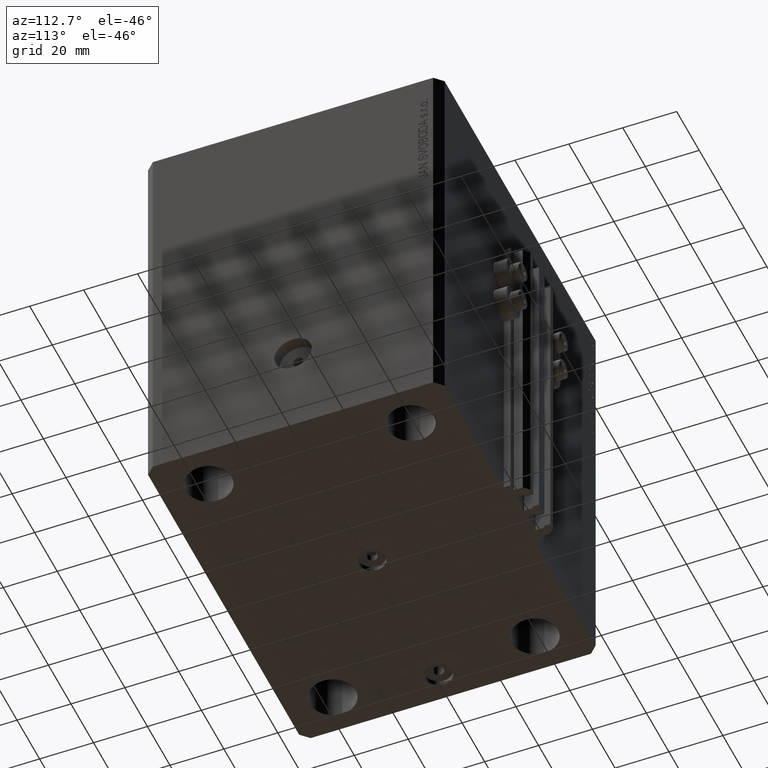
[diagram: clean part render]
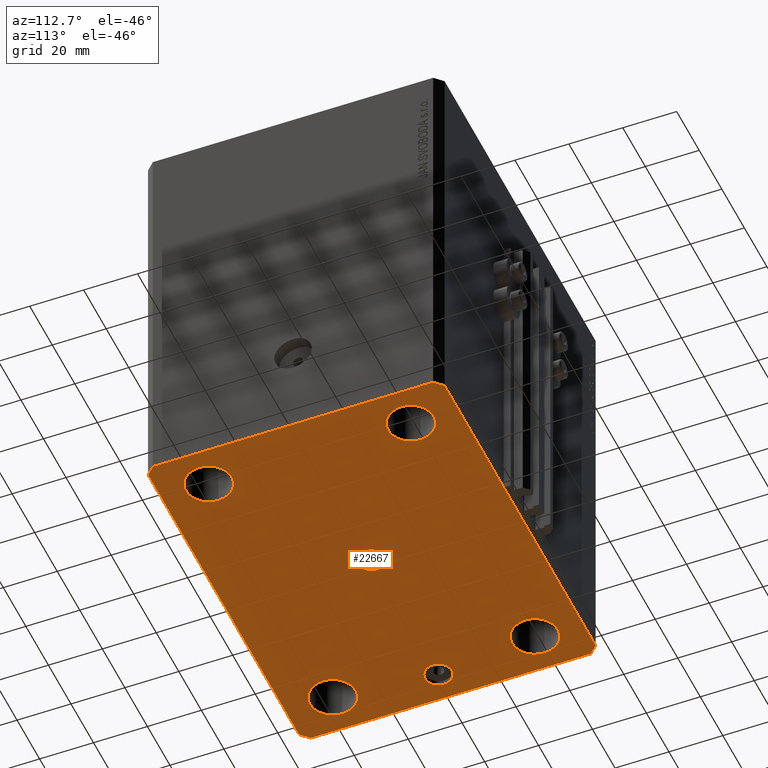
[diagram: same view with one face highlighted and labeled with its STEP entity id]
A machine part, auxiliary view. The second image highlights one B-rep face of the part: STEP entity #22667.
In plain terms, the highlighted planar face has unit normal (0, 0, 1).
Its self-contained STEP definition (entity closure, byte-faithful):
#127 = AXIS2_PLACEMENT_3D ( 'NONE', #18627, #26053, #7853 ) ;
#305 = CARTESIAN_POINT ( 'NONE',  ( -53.99999999999999289, 6.123233995736770227E-16, -150.0000000000000000 ) ) ;
#652 = CARTESIAN_POINT ( 'NONE',  ( 46.49999999999998579, -37.50000000000000711, -150.0000000000000000 ) ) ;
#937 = AXIS2_PLACEMENT_3D ( 'NONE', #3836, #18433, #39736 ) ;
#1021 = EDGE_CURVE ( 'NONE', #35466, #8320, #34172, .T. ) ;
#1191 = EDGE_CURVE ( 'NONE', #26977, #42983, #46444, .T. ) ;
#1314 = DIRECTION ( 'NONE',  ( -0.000000000000000000, -0.000000000000000000, -1.000000000000000000 ) ) ;
#1331 = CIRCLE ( 'NONE', #18903, 8.499999999999992895 ) ;
#1920 = CARTESIAN_POINT ( 'NONE',  ( 0.000000000000000000, 0.000000000000000000, -150.0000000000000000 ) ) ;
#2091 = EDGE_CURVE ( 'NONE', #23521, #5578, #42512, .T. ) ;
#2126 = VECTOR ( 'NONE', #16199, 1000.000000000000000 ) ;
#2131 = CARTESIAN_POINT ( 'NONE',  ( -63.49999999999998579, -37.50000000000000711, -150.0000000000000000 ) ) ;
#2257 = ORIENTED_EDGE ( 'NONE', *, *, #16299, .F. ) ;
#2382 = DIRECTION ( 'NONE',  ( -0.7071067811865483499, -0.7071067811865466846, 0.000000000000000000 ) ) ;
#2736 = VECTOR ( 'NONE', #33920, 1000.000000000000000 ) ;
#2987 = DIRECTION ( 'NONE',  ( -0.000000000000000000, -0.000000000000000000, -1.000000000000000000 ) ) ;
#3018 = CARTESIAN_POINT ( 'NONE',  ( 46.50000000000001421, 37.49999999999998579, -150.0000000000000000 ) ) ;
#3210 = EDGE_CURVE ( 'NONE', #13080, #29274, #38683, .T. ) ;
#3519 = CARTESIAN_POINT ( 'NONE',  ( -70.00000000000000000, -52.00000000000000711, -150.0000000000000000 ) ) ;
#3836 = CARTESIAN_POINT ( 'NONE',  ( 0.000000000000000000, 0.000000000000000000, -150.0000000000000000 ) ) ;
#4373 = VERTEX_POINT ( 'NONE', #19976 ) ;
#4975 = ORIENTED_EDGE ( 'NONE', *, *, #1191, .F. ) ;
#4993 = EDGE_LOOP ( 'NONE', ( #4975, #24614 ) ) ;
#5195 = LINE ( 'NONE', #34391, #2736 ) ;
#5284 = DIRECTION ( 'NONE',  ( -0.000000000000000000, -0.000000000000000000, -1.000000000000000000 ) ) ;
#5578 = VERTEX_POINT ( 'NONE', #14669 ) ;
#5998 = VECTOR ( 'NONE', #24286, 1000.000000000000000 ) ;
#6588 = DIRECTION ( 'NONE',  ( 1.000000000000000000, 0.000000000000000000, 0.000000000000000000 ) ) ;
#6816 = CARTESIAN_POINT ( 'NONE',  ( 70.00000000000054001, 51.99999999999995026, -150.0000000000000000 ) ) ;
#6853 = VERTEX_POINT ( 'NONE', #43302 ) ;
#6899 = ORIENTED_EDGE ( 'NONE', *, *, #41856, .F. ) ;
#7496 = DIRECTION ( 'NONE',  ( -0.000000000000000000, -0.000000000000000000, -1.000000000000000000 ) ) ;
#7517 = DIRECTION ( 'NONE',  ( 1.000000000000000000, 0.000000000000000000, 0.000000000000000000 ) ) ;
#7726 = FACE_BOUND ( 'NONE', #14811, .T. ) ;
#7853 = DIRECTION ( 'NONE',  ( -1.000000000000000000, 0.000000000000000000, 0.000000000000000000 ) ) ;
#7955 = CARTESIAN_POINT ( 'NONE',  ( -67.00000000000000000, -55.00000000000000000, -150.0000000000000000 ) ) ;
#7963 = FACE_OUTER_BOUND ( 'NONE', #14334, .T. ) ;
#8239 = VECTOR ( 'NONE', #36555, 1000.000000000000114 ) ;
#8320 = VERTEX_POINT ( 'NONE', #3018 ) ;
#8592 = ORIENTED_EDGE ( 'NONE', *, *, #17261, .F. ) ;
#9667 = FACE_BOUND ( 'NONE', #42115, .T. ) ;
#9673 = LINE ( 'NONE', #31695, #5998 ) ;
#10028 = DIRECTION ( 'NONE',  ( -0.000000000000000000, -0.000000000000000000, -1.000000000000000000 ) ) ;
#10236 = DIRECTION ( 'NONE',  ( 0.7071067811865483499, -0.7071067811865466846, 0.000000000000000000 ) ) ;
#10952 = LINE ( 'NONE', #14550, #8239 ) ;
#11978 = CARTESIAN_POINT ( 'NONE',  ( 55.00000000000000711, 37.49999999999998579, -150.0000000000000000 ) ) ;
#12425 = ORIENTED_EDGE ( 'NONE', *, *, #12662, .F. ) ;
#12490 = CARTESIAN_POINT ( 'NONE',  ( -46.50000000000000000, 37.50000000000000000, -150.0000000000000000 ) ) ;
#12523 = ORIENTED_EDGE ( 'NONE', *, *, #30183, .F. ) ;
#12525 = DIRECTION ( 'NONE',  ( 1.000000000000000000, 0.000000000000000000, 0.000000000000000000 ) ) ;
#12662 = EDGE_CURVE ( 'NONE', #38945, #33698, #30616, .T. ) ;
#12866 = DIRECTION ( 'NONE',  ( 0.7071067811865483499, 0.7071067811865466846, 0.000000000000000000 ) ) ;
#13080 = VERTEX_POINT ( 'NONE', #38373 ) ;
#13641 = CIRCLE ( 'NONE', #36545, 8.500000000000000000 ) ;
#14334 = EDGE_LOOP ( 'NONE', ( #15631, #46544, #18022, #42074, #12523, #34101, #42702, #37475 ) ) ;
#14550 = CARTESIAN_POINT ( 'NONE',  ( 70.00000000000054001, 51.99999999999995026, -150.0000000000000000 ) ) ;
#14669 = CARTESIAN_POINT ( 'NONE',  ( -67.00000000000000000, 55.00000000000000000, -150.0000000000000000 ) ) ;
#14811 = EDGE_LOOP ( 'NONE', ( #44689, #2257 ) ) ;
#14900 = VECTOR ( 'NONE', #10236, 1000.000000000000000 ) ;
#15612 = AXIS2_PLACEMENT_3D ( 'NONE', #25437, #25920, #29988 ) ;
#15631 = ORIENTED_EDGE ( 'NONE', *, *, #2091, .F. ) ;
#16199 = DIRECTION ( 'NONE',  ( 0.000000000000000000, -1.000000000000000000, 0.000000000000000000 ) ) ;
#16283 = DIRECTION ( 'NONE',  ( 1.000000000000000000, 0.000000000000000000, 0.000000000000000000 ) ) ;
#16299 = EDGE_CURVE ( 'NONE', #44303, #39399, #45996, .T. ) ;
#16504 = DIRECTION ( 'NONE',  ( 0.000000000000000000, 0.000000000000000000, -1.000000000000000000 ) ) ;
#16587 = VECTOR ( 'NONE', #12866, 1000.000000000000000 ) ;
#16627 = VERTEX_POINT ( 'NONE', #36079 ) ;
#16952 = ORIENTED_EDGE ( 'NONE', *, *, #45385, .F. ) ;
#17135 = CARTESIAN_POINT ( 'NONE',  ( -70.00000000000000000, 52.00000000000000711, -150.0000000000000000 ) ) ;
#17211 = CARTESIAN_POINT ( 'NONE',  ( -54.99999999999998579, -37.50000000000000711, -150.0000000000000000 ) ) ;
#17261 = EDGE_CURVE ( 'NONE', #39194, #6853, #23096, .T. ) ;
#17445 = LINE ( 'NONE', #20326, #31213 ) ;
#18022 = ORIENTED_EDGE ( 'NONE', *, *, #46237, .F. ) ;
#18151 = DIRECTION ( 'NONE',  ( 1.000000000000000000, 0.000000000000000000, 0.000000000000000000 ) ) ;
#18199 = EDGE_CURVE ( 'NONE', #42983, #26977, #23132, .T. ) ;
#18433 = DIRECTION ( 'NONE',  ( 0.000000000000000000, 0.000000000000000000, -1.000000000000000000 ) ) ;
#18627 = CARTESIAN_POINT ( 'NONE',  ( -59.00000000000000000, 0.000000000000000000, -150.0000000000000000 ) ) ;
#18903 = AXIS2_PLACEMENT_3D ( 'NONE', #11978, #5284, #16283 ) ;
#19157 = VERTEX_POINT ( 'NONE', #6816 ) ;
#19307 = AXIS2_PLACEMENT_3D ( 'NONE', #22093, #7496, #36926 ) ;
#19584 = CARTESIAN_POINT ( 'NONE',  ( 67.00000000000000000, -55.00000000000000000, -150.0000000000000000 ) ) ;
#19976 = CARTESIAN_POINT ( 'NONE',  ( -46.49999999999998579, -37.50000000000000711, -150.0000000000000000 ) ) ;
#20321 = ORIENTED_EDGE ( 'NONE', *, *, #28199, .F. ) ;
#20326 = CARTESIAN_POINT ( 'NONE',  ( -67.00000000000000000, 55.00000000000000000, -150.0000000000000000 ) ) ;
#20949 = CARTESIAN_POINT ( 'NONE',  ( 67.00000000000058265, 54.99999999999999289, -150.0000000000000000 ) ) ;
#21230 = AXIS2_PLACEMENT_3D ( 'NONE', #1920, #16504, #44776 ) ;
#21848 = VERTEX_POINT ( 'NONE', #2131 ) ;
#21870 = DIRECTION ( 'NONE',  ( -0.000000000000000000, -0.000000000000000000, -1.000000000000000000 ) ) ;
#21950 = LINE ( 'NONE', #3519, #14900 ) ;
#22093 = CARTESIAN_POINT ( 'NONE',  ( 54.99999999999998579, -37.50000000000000711, -150.0000000000000000 ) ) ;
#22117 = VERTEX_POINT ( 'NONE', #27820 ) ;
#22332 = PLANE ( 'NONE',  #15612 ) ;
#22667 = ADVANCED_FACE ( 'NONE', ( #9667, #7726, #40760, #26167, #40271, #47231, #7963 ), #22332, .F. ) ;
#22691 = AXIS2_PLACEMENT_3D ( 'NONE', #44976, #37313, #22955 ) ;
#22708 = LINE ( 'NONE', #19584, #16587 ) ;
#22955 = DIRECTION ( 'NONE',  ( 1.000000000000000000, 0.000000000000000000, 0.000000000000000000 ) ) ;
#23096 = CIRCLE ( 'NONE', #937, 5.000000000000000000 ) ;
#23132 = CIRCLE ( 'NONE', #19307, 8.500000000000000000 ) ;
#23521 = VERTEX_POINT ( 'NONE', #24522 ) ;
#24286 = DIRECTION ( 'NONE',  ( 5.070730160547592760E-15, 1.000000000000000000, 0.000000000000000000 ) ) ;
#24522 = CARTESIAN_POINT ( 'NONE',  ( 67.00000000000058265, 54.99999999999999289, -150.0000000000000000 ) ) ;
#24614 = ORIENTED_EDGE ( 'NONE', *, *, #18199, .F. ) ;
#24788 = EDGE_LOOP ( 'NONE', ( #31226, #6899 ) ) ;
#25437 = CARTESIAN_POINT ( 'NONE',  ( 0.000000000000000000, 0.000000000000000000, -150.0000000000000000 ) ) ;
#25566 = DIRECTION ( 'NONE',  ( -0.000000000000000000, -0.000000000000000000, -1.000000000000000000 ) ) ;
#25920 = DIRECTION ( 'NONE',  ( 0.000000000000000000, 0.000000000000000000, 1.000000000000000000 ) ) ;
#26053 = DIRECTION ( 'NONE',  ( 0.000000000000000000, 0.000000000000000000, -1.000000000000000000 ) ) ;
#26167 = FACE_BOUND ( 'NONE', #4993, .T. ) ;
#26290 = EDGE_CURVE ( 'NONE', #29274, #35252, #21950, .T. ) ;
#26977 = VERTEX_POINT ( 'NONE', #27282 ) ;
#27282 = CARTESIAN_POINT ( 'NONE',  ( 63.49999999999998579, -37.50000000000000711, -150.0000000000000000 ) ) ;
#27820 = CARTESIAN_POINT ( 'NONE',  ( 70.00000000000000000, -52.00000000000000711, -150.0000000000000000 ) ) ;
#28199 = EDGE_CURVE ( 'NONE', #33698, #38945, #43168, .T. ) ;
#28459 = DIRECTION ( 'NONE',  ( 1.000000000000000000, 0.000000000000000000, 0.000000000000000000 ) ) ;
#29274 = VERTEX_POINT ( 'NONE', #43152 ) ;
#29633 = CARTESIAN_POINT ( 'NONE',  ( -55.00000000000000000, 37.50000000000000000, -150.0000000000000000 ) ) ;
#29682 = CARTESIAN_POINT ( 'NONE',  ( -5.000000000000000000, 0.000000000000000000, -150.0000000000000000 ) ) ;
#29988 = DIRECTION ( 'NONE',  ( 1.000000000000000000, 0.000000000000000000, -0.000000000000000000 ) ) ;
#30151 = AXIS2_PLACEMENT_3D ( 'NONE', #32412, #2987, #6588 ) ;
#30183 = EDGE_CURVE ( 'NONE', #35252, #16627, #5195, .T. ) ;
#30616 = CIRCLE ( 'NONE', #44346, 8.500000000000000000 ) ;
#31213 = VECTOR ( 'NONE', #2382, 1000.000000000000000 ) ;
#31226 = ORIENTED_EDGE ( 'NONE', *, *, #1021, .F. ) ;
#31695 = CARTESIAN_POINT ( 'NONE',  ( 70.00000000000000000, -52.00000000000000711, -150.0000000000000000 ) ) ;
#31805 = CARTESIAN_POINT ( 'NONE',  ( -64.00000000000000000, 0.000000000000000000, -150.0000000000000000 ) ) ;
#31974 = CIRCLE ( 'NONE', #47280, 8.500000000000000000 ) ;
#32412 = CARTESIAN_POINT ( 'NONE',  ( -55.00000000000000000, 37.50000000000000000, -150.0000000000000000 ) ) ;
#32582 = DIRECTION ( 'NONE',  ( -1.000000000000000000, 0.000000000000000000, 0.000000000000000000 ) ) ;
#32883 = EDGE_CURVE ( 'NONE', #39399, #44303, #44148, .T. ) ;
#32925 = EDGE_LOOP ( 'NONE', ( #12425, #20321 ) ) ;
#33698 = VERTEX_POINT ( 'NONE', #40917 ) ;
#33920 = DIRECTION ( 'NONE',  ( 1.000000000000000000, 0.000000000000000000, 0.000000000000000000 ) ) ;
#34101 = ORIENTED_EDGE ( 'NONE', *, *, #26290, .F. ) ;
#34172 = CIRCLE ( 'NONE', #22691, 8.499999999999992895 ) ;
#34391 = CARTESIAN_POINT ( 'NONE',  ( -67.00000000000000000, -55.00000000000000000, -150.0000000000000000 ) ) ;
#34614 = DIRECTION ( 'NONE',  ( -1.000000000000000000, 5.178279032766565695E-17, 0.000000000000000000 ) ) ;
#34958 = VECTOR ( 'NONE', #34614, 1000.000000000000000 ) ;
#35252 = VERTEX_POINT ( 'NONE', #7955 ) ;
#35466 = VERTEX_POINT ( 'NONE', #46475 ) ;
#35537 = ORIENTED_EDGE ( 'NONE', *, *, #40219, .F. ) ;
#36079 = CARTESIAN_POINT ( 'NONE',  ( 67.00000000000000000, -55.00000000000000000, -150.0000000000000000 ) ) ;
#36166 = DIRECTION ( 'NONE',  ( 0.000000000000000000, 0.000000000000000000, -1.000000000000000000 ) ) ;
#36545 = AXIS2_PLACEMENT_3D ( 'NONE', #17211, #10028, #28459 ) ;
#36555 = DIRECTION ( 'NONE',  ( -0.7071067811865361374, 0.7071067811865588970, 0.000000000000000000 ) ) ;
#36746 = EDGE_LOOP ( 'NONE', ( #40325, #16952 ) ) ;
#36926 = DIRECTION ( 'NONE',  ( 1.000000000000000000, 0.000000000000000000, 0.000000000000000000 ) ) ;
#37086 = EDGE_CURVE ( 'NONE', #4373, #21848, #31974, .T. ) ;
#37313 = DIRECTION ( 'NONE',  ( -0.000000000000000000, -0.000000000000000000, -1.000000000000000000 ) ) ;
#37475 = ORIENTED_EDGE ( 'NONE', *, *, #44634, .F. ) ;
#38373 = CARTESIAN_POINT ( 'NONE',  ( -70.00000000000000000, 52.00000000000000711, -150.0000000000000000 ) ) ;
#38683 = LINE ( 'NONE', #17135, #2126 ) ;
#38945 = VERTEX_POINT ( 'NONE', #12490 ) ;
#39194 = VERTEX_POINT ( 'NONE', #29682 ) ;
#39399 = VERTEX_POINT ( 'NONE', #31805 ) ;
#39509 = EDGE_CURVE ( 'NONE', #19157, #23521, #10952, .T. ) ;
#39736 = DIRECTION ( 'NONE',  ( -1.000000000000000000, 0.000000000000000000, 0.000000000000000000 ) ) ;
#39766 = CARTESIAN_POINT ( 'NONE',  ( -59.00000000000000000, 0.000000000000000000, -150.0000000000000000 ) ) ;
#40219 = EDGE_CURVE ( 'NONE', #6853, #39194, #40313, .T. ) ;
#40271 = FACE_BOUND ( 'NONE', #24788, .T. ) ;
#40313 = CIRCLE ( 'NONE', #21230, 5.000000000000000000 ) ;
#40325 = ORIENTED_EDGE ( 'NONE', *, *, #37086, .F. ) ;
#40760 = FACE_BOUND ( 'NONE', #36746, .T. ) ;
#40917 = CARTESIAN_POINT ( 'NONE',  ( -63.50000000000000000, 37.50000000000000000, -150.0000000000000000 ) ) ;
#41856 = EDGE_CURVE ( 'NONE', #8320, #35466, #1331, .T. ) ;
#42074 = ORIENTED_EDGE ( 'NONE', *, *, #42084, .F. ) ;
#42084 = EDGE_CURVE ( 'NONE', #16627, #22117, #22708, .T. ) ;
#42115 = EDGE_LOOP ( 'NONE', ( #8592, #35537 ) ) ;
#42512 = LINE ( 'NONE', #20949, #34958 ) ;
#42702 = ORIENTED_EDGE ( 'NONE', *, *, #3210, .F. ) ;
#42983 = VERTEX_POINT ( 'NONE', #652 ) ;
#43152 = CARTESIAN_POINT ( 'NONE',  ( -70.00000000000000000, -52.00000000000000711, -150.0000000000000000 ) ) ;
#43168 = CIRCLE ( 'NONE', #30151, 8.500000000000000000 ) ;
#43302 = CARTESIAN_POINT ( 'NONE',  ( 5.000000000000000000, 6.123233995736765296E-16, -150.0000000000000000 ) ) ;
#43357 = AXIS2_PLACEMENT_3D ( 'NONE', #39766, #36166, #32582 ) ;
#44102 = AXIS2_PLACEMENT_3D ( 'NONE', #44136, #21870, #7517 ) ;
#44136 = CARTESIAN_POINT ( 'NONE',  ( 54.99999999999998579, -37.50000000000000711, -150.0000000000000000 ) ) ;
#44148 = CIRCLE ( 'NONE', #43357, 5.000000000000004441 ) ;
#44303 = VERTEX_POINT ( 'NONE', #305 ) ;
#44346 = AXIS2_PLACEMENT_3D ( 'NONE', #29633, #25566, #18151 ) ;
#44634 = EDGE_CURVE ( 'NONE', #5578, #13080, #17445, .T. ) ;
#44689 = ORIENTED_EDGE ( 'NONE', *, *, #32883, .F. ) ;
#44776 = DIRECTION ( 'NONE',  ( -1.000000000000000000, 0.000000000000000000, 0.000000000000000000 ) ) ;
#44976 = CARTESIAN_POINT ( 'NONE',  ( 55.00000000000000711, 37.49999999999998579, -150.0000000000000000 ) ) ;
#45385 = EDGE_CURVE ( 'NONE', #21848, #4373, #13641, .T. ) ;
#45572 = CARTESIAN_POINT ( 'NONE',  ( -54.99999999999998579, -37.50000000000000711, -150.0000000000000000 ) ) ;
#45996 = CIRCLE ( 'NONE', #127, 5.000000000000004441 ) ;
#46237 = EDGE_CURVE ( 'NONE', #22117, #19157, #9673, .T. ) ;
#46444 = CIRCLE ( 'NONE', #44102, 8.500000000000000000 ) ;
#46475 = CARTESIAN_POINT ( 'NONE',  ( 63.50000000000000000, 37.49999999999998579, -150.0000000000000000 ) ) ;
#46544 = ORIENTED_EDGE ( 'NONE', *, *, #39509, .F. ) ;
#47231 = FACE_BOUND ( 'NONE', #32925, .T. ) ;
#47280 = AXIS2_PLACEMENT_3D ( 'NONE', #45572, #1314, #12525 ) ;